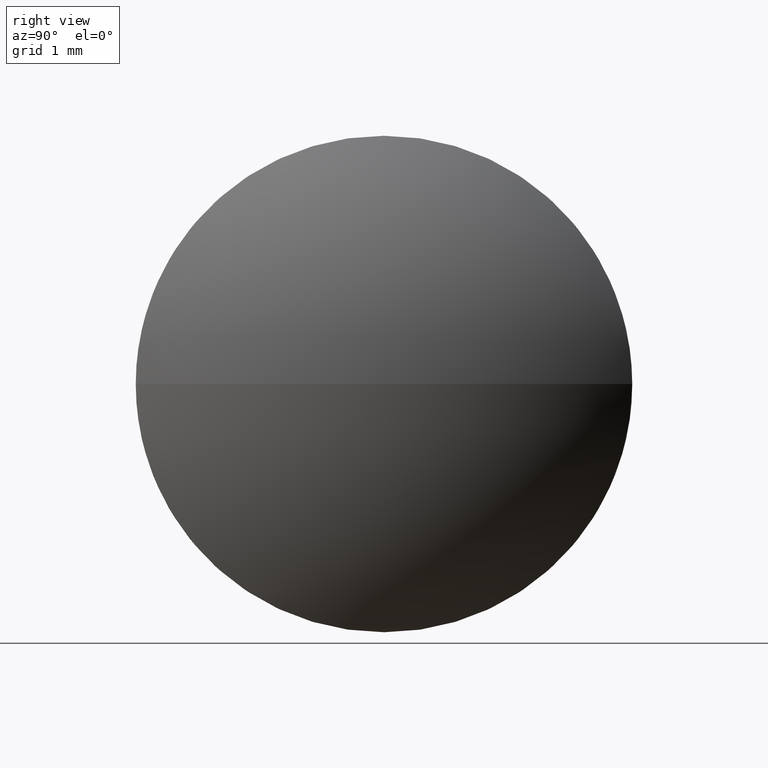
[diagram: clean part render]
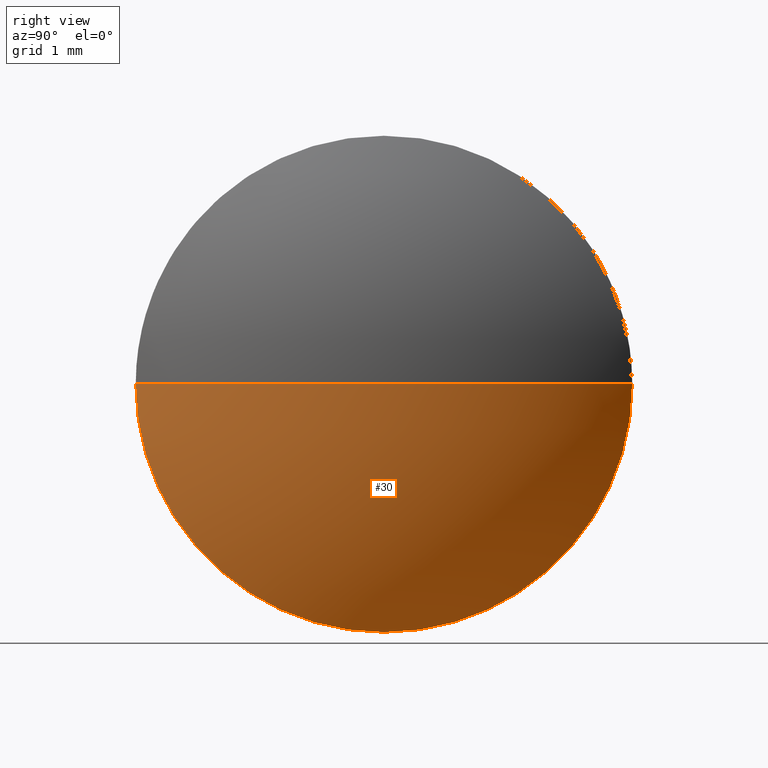
[diagram: same view with one face highlighted and labeled with its STEP entity id]
A machine part, right view. The second image highlights one B-rep face of the part: STEP entity #30.
In plain terms, the highlighted spherical surface has radius 5.1717 mm.
Its self-contained STEP definition (entity closure, byte-faithful):
#6 = CIRCLE ( 'NONE', #147, 5.171682242990693900 ) ;
#10 = CARTESIAN_POINT ( 'NONE',  ( 408.9557073353928400, -154.2646771104562900, 0.0000000000000000000 ) ) ;
#12 = CARTESIAN_POINT ( 'NONE',  ( 413.0573895783834900, -154.2646771104562600, 0.0000000000000000000 ) ) ;
#14 = EDGE_CURVE ( 'NONE', #183, #115, #87, .T. ) ;
#27 = EDGE_LOOP ( 'NONE', ( #64, #98, #177, #83 ) ) ;
#29 = VERTEX_POINT ( 'NONE', #54 ) ;
#30 = ADVANCED_FACE ( 'NONE', ( #62 ), #150, .T. ) ;
#47 = CIRCLE ( 'NONE', #95, 3.150000000000013700 ) ;
#49 = AXIS2_PLACEMENT_3D ( 'NONE', #127, #109, #141 ) ;
#54 = CARTESIAN_POINT ( 'NONE',  ( 413.0573895783834900, -154.2646771104562600, -3.150000000000013700 ) ) ;
#62 = FACE_OUTER_BOUND ( 'NONE', #27, .T. ) ;
#64 = ORIENTED_EDGE ( 'NONE', *, *, #14, .F. ) ;
#66 = CARTESIAN_POINT ( 'NONE',  ( 414.1273895783835400, -154.2646771104562900, 0.0000000000000000000 ) ) ;
#77 = DIRECTION ( 'NONE',  ( 0.0000000000000000000, 1.000000000000000000, 0.0000000000000000000 ) ) ;
#83 = ORIENTED_EDGE ( 'NONE', *, *, #121, .F. ) ;
#87 = CIRCLE ( 'NONE', #130, 5.171682242990693900 ) ;
#95 = AXIS2_PLACEMENT_3D ( 'NONE', #12, #139, #107 ) ;
#97 = CIRCLE ( 'NONE', #49, 3.150000000000013700 ) ;
#98 = ORIENTED_EDGE ( 'NONE', *, *, #152, .T. ) ;
#100 = VERTEX_POINT ( 'NONE', #166 ) ;
#101 = CARTESIAN_POINT ( 'NONE',  ( 408.9557073353928400, -154.2646771104562900, 0.0000000000000000000 ) ) ;
#102 = AXIS2_PLACEMENT_3D ( 'NONE', #101, #104, #77 ) ;
#104 = DIRECTION ( 'NONE',  ( -0.0000000000000000000, 0.0000000000000000000, -1.000000000000000000 ) ) ;
#106 = DIRECTION ( 'NONE',  ( -0.0000000000000000000, 0.0000000000000000000, 1.000000000000000000 ) ) ;
#107 = DIRECTION ( 'NONE',  ( 0.0000000000000000000, 0.0000000000000000000, 1.000000000000000000 ) ) ;
#109 = DIRECTION ( 'NONE',  ( -1.000000000000000000, -0.0000000000000000000, -0.0000000000000000000 ) ) ;
#113 = DIRECTION ( 'NONE',  ( 0.0000000000000000000, 1.000000000000000000, 1.224646799147353900E-016 ) ) ;
#115 = VERTEX_POINT ( 'NONE', #182 ) ;
#121 = EDGE_CURVE ( 'NONE', #115, #29, #97, .T. ) ;
#127 = CARTESIAN_POINT ( 'NONE',  ( 413.0573895783834900, -154.2646771104562600, 0.0000000000000000000 ) ) ;
#130 = AXIS2_PLACEMENT_3D ( 'NONE', #10, #106, #170 ) ;
#139 = DIRECTION ( 'NONE',  ( -1.000000000000000000, -0.0000000000000000000, -0.0000000000000000000 ) ) ;
#141 = DIRECTION ( 'NONE',  ( 0.0000000000000000000, 0.0000000000000000000, 1.000000000000000000 ) ) ;
#147 = AXIS2_PLACEMENT_3D ( 'NONE', #160, #176, #113 ) ;
#150 = SPHERICAL_SURFACE ( 'NONE', #102, 5.171682242990696600 ) ;
#152 = EDGE_CURVE ( 'NONE', #183, #100, #6, .T. ) ;
#160 = CARTESIAN_POINT ( 'NONE',  ( 408.9557073353928400, -154.2646771104562900, 0.0000000000000000000 ) ) ;
#166 = CARTESIAN_POINT ( 'NONE',  ( 413.0573895783834900, -157.4146771104563200, -3.857637417314178500E-016 ) ) ;
#170 = DIRECTION ( 'NONE',  ( 1.000000000000000000, 0.0000000000000000000, 0.0000000000000000000 ) ) ;
#174 = EDGE_CURVE ( 'NONE', #29, #100, #47, .T. ) ;
#176 = DIRECTION ( 'NONE',  ( 0.0000000000000000000, 1.224646799147353200E-016, -1.000000000000000000 ) ) ;
#177 = ORIENTED_EDGE ( 'NONE', *, *, #174, .F. ) ;
#182 = CARTESIAN_POINT ( 'NONE',  ( 413.0573895783834900, -151.1146771104562600, 0.0000000000000000000 ) ) ;
#183 = VERTEX_POINT ( 'NONE', #66 ) ;